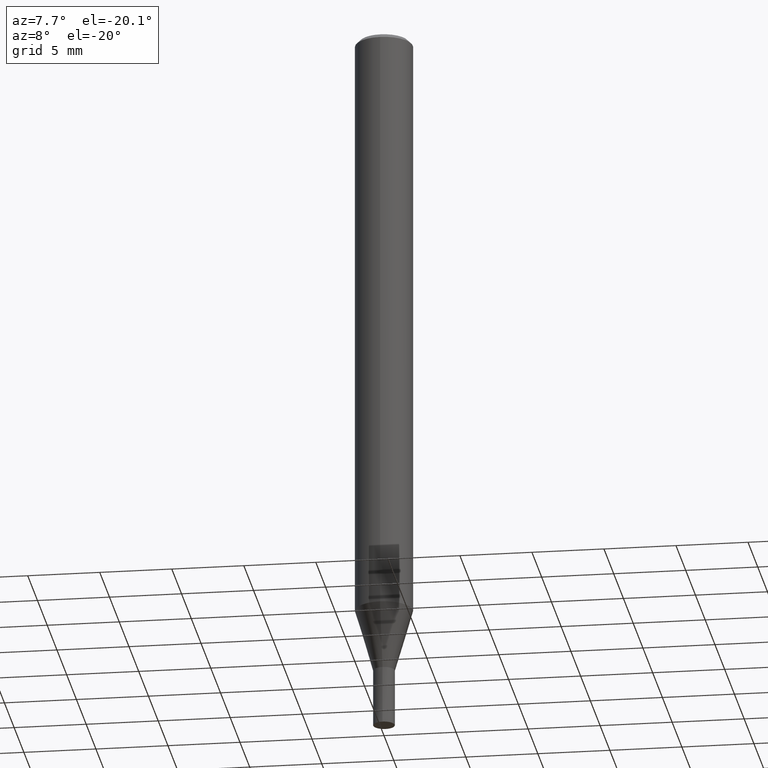
[diagram: clean part render]
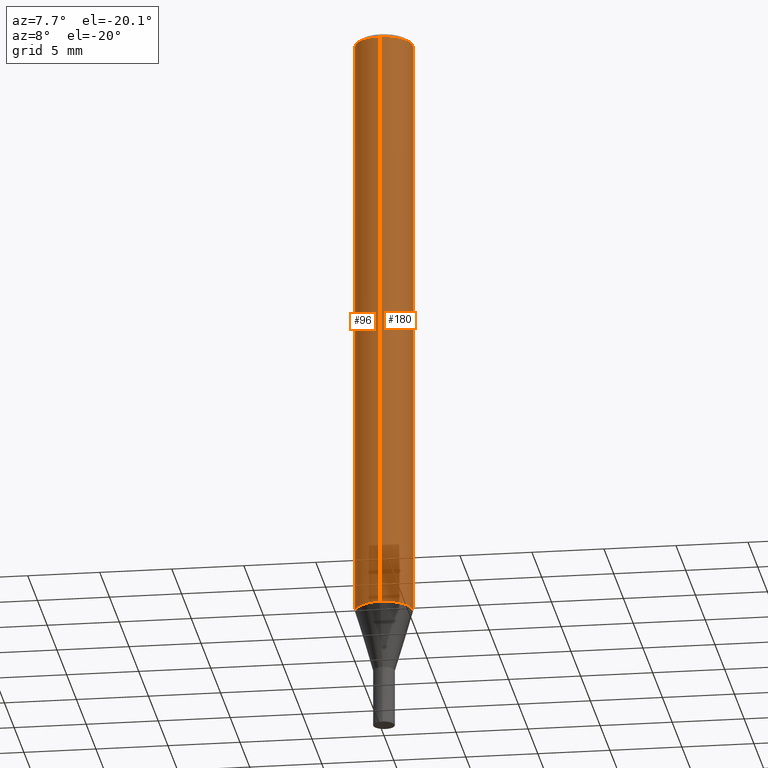
[diagram: same view with one multi-face feature highlighted, each face labeled with its STEP entity id]
A machine part, auxiliary view. The highlighted faces form ONE feature: a constant-radius fillet chain: 2 tangent blend faces with common blend radius 2 mm. The faces share edges in the B-rep.
Their STEP definitions:
[1] entity #180 (Cylinder):
#90=VERTEX_POINT('',#211);
#102=VERTEX_POINT('',#226);
#104=EDGE_CURVE('',#154,#102,#228,.T.);
#118=VERTEX_POINT('',#245);
#122=EDGE_CURVE('',#102,#118,#249,.T.);
#154=VERTEX_POINT('',#285);
#156=EDGE_CURVE('',#118,#90,#287,.T.);
#180=ADVANCED_FACE('',(#312),#313,.T.);
#182=EDGE_CURVE('',#154,#90,#315,.T.);
#211=CARTESIAN_POINT('',(2.44921270764475E-016,-2.0,-0.299999999999997));
#226=CARTESIAN_POINT('',(0.0,2.0,-41.641));
#228=LINE('',#360,#361);
#245=CARTESIAN_POINT('',(2.44921270764475E-016,-2.0,-41.641));
#249=CIRCLE('',#384,2.0);
#285=CARTESIAN_POINT('',(0.0,2.0,-0.299999999999997));
#287=LINE('',#433,#434);
#312=FACE_OUTER_BOUND('',#466,.T.);
#313=CYLINDRICAL_SURFACE('',#467,2.0);
#315=CIRCLE('',#470,2.0);
#360=CARTESIAN_POINT('',(-2.44921270764475E-016,2.0,-20.9705));
#361=VECTOR('',#507,1.0);
#384=AXIS2_PLACEMENT_3D('',#531,#532,#533);
#433=CARTESIAN_POINT('',(2.44921270764475E-016,-2.0,-20.9705));
#434=VECTOR('',#576,1.0);
#466=EDGE_LOOP('',(#606,#607,#608,#609));
#467=AXIS2_PLACEMENT_3D('',#610,#611,#612);
#470=AXIS2_PLACEMENT_3D('',#613,#614,#615);
#507=DIRECTION('',(0.0,0.0,-1.0));
#531=CARTESIAN_POINT('',(0.0,0.0,-41.641));
#532=DIRECTION('',(0.0,0.0,-1.0));
#533=DIRECTION('',(0.0,1.0,0.0));
#576=DIRECTION('',(-0.0,-0.0,1.0));
#606=ORIENTED_EDGE('',*,*,#104,.F.);
#607=ORIENTED_EDGE('',*,*,#182,.T.);
#608=ORIENTED_EDGE('',*,*,#156,.F.);
#609=ORIENTED_EDGE('',*,*,#122,.F.);
#610=CARTESIAN_POINT('',(0.0,0.0,-20.9705));
#611=DIRECTION('',(-0.0,-0.0,1.0));
#612=DIRECTION('',(0.0,1.0,0.0));
#613=CARTESIAN_POINT('',(0.0,0.0,-0.299999999999997));
#614=DIRECTION('',(0.0,0.0,-1.0));
#615=DIRECTION('',(0.0,1.0,0.0));
[2] entity #96 (Cylinder):
#90=VERTEX_POINT('',#211);
#92=EDGE_CURVE('',#90,#154,#213,.T.);
#96=ADVANCED_FACE('',(#218),#219,.T.);
#102=VERTEX_POINT('',#226);
#104=EDGE_CURVE('',#154,#102,#228,.T.);
#118=VERTEX_POINT('',#245);
#138=EDGE_CURVE('',#118,#102,#266,.T.);
#154=VERTEX_POINT('',#285);
#156=EDGE_CURVE('',#118,#90,#287,.T.);
#211=CARTESIAN_POINT('',(2.44921270764475E-016,-2.0,-0.299999999999997));
#213=CIRCLE('',#343,2.0);
#218=FACE_OUTER_BOUND('',#348,.T.);
#219=CYLINDRICAL_SURFACE('',#349,2.0);
#226=CARTESIAN_POINT('',(0.0,2.0,-41.641));
#228=LINE('',#360,#361);
#245=CARTESIAN_POINT('',(2.44921270764475E-016,-2.0,-41.641));
#266=CIRCLE('',#405,2.0);
#285=CARTESIAN_POINT('',(0.0,2.0,-0.299999999999997));
#287=LINE('',#433,#434);
#343=AXIS2_PLACEMENT_3D('',#477,#478,#479);
#348=EDGE_LOOP('',(#489,#490,#491,#492));
#349=AXIS2_PLACEMENT_3D('',#493,#494,#495);
#360=CARTESIAN_POINT('',(-2.44921270764475E-016,2.0,-20.9705));
#361=VECTOR('',#507,1.0);
#405=AXIS2_PLACEMENT_3D('',#548,#549,#550);
#433=CARTESIAN_POINT('',(2.44921270764475E-016,-2.0,-20.9705));
#434=VECTOR('',#576,1.0);
#477=CARTESIAN_POINT('',(0.0,0.0,-0.299999999999997));
#478=DIRECTION('',(0.0,0.0,-1.0));
#479=DIRECTION('',(0.0,1.0,0.0));
#489=ORIENTED_EDGE('',*,*,#104,.T.);
#490=ORIENTED_EDGE('',*,*,#138,.F.);
#491=ORIENTED_EDGE('',*,*,#156,.T.);
#492=ORIENTED_EDGE('',*,*,#92,.T.);
#493=CARTESIAN_POINT('',(0.0,0.0,-20.9705));
#494=DIRECTION('',(-0.0,-0.0,1.0));
#495=DIRECTION('',(0.0,1.0,0.0));
#507=DIRECTION('',(0.0,0.0,-1.0));
#548=CARTESIAN_POINT('',(0.0,0.0,-41.641));
#549=DIRECTION('',(0.0,0.0,-1.0));
#550=DIRECTION('',(0.0,1.0,0.0));
#576=DIRECTION('',(-0.0,-0.0,1.0));